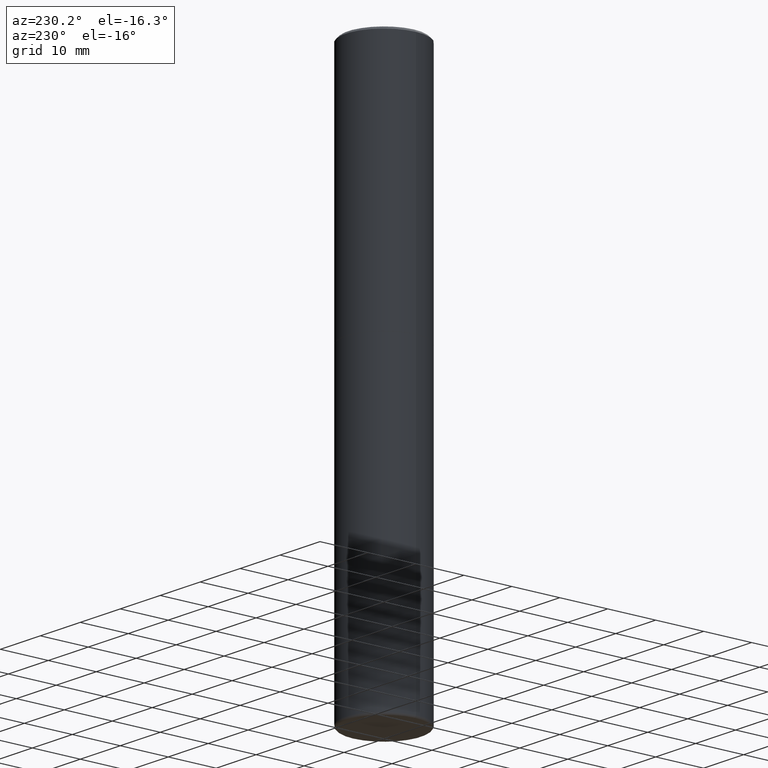
[diagram: clean part render]
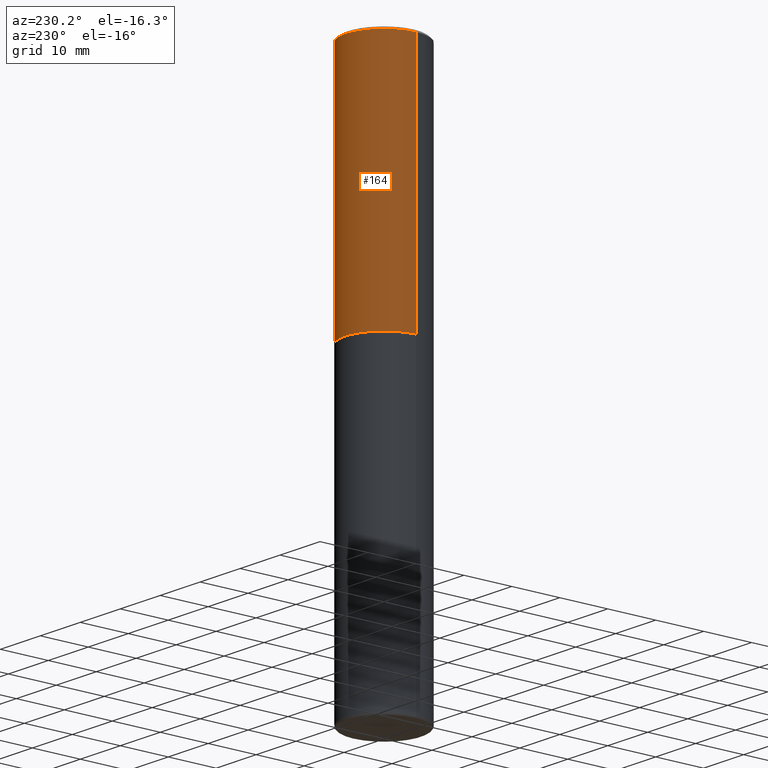
[diagram: same view with one face highlighted and labeled with its STEP entity id]
A machine part, auxiliary view. The second image highlights one B-rep face of the part: STEP entity #164.
In plain terms, the highlighted cylindrical surface (partial cylindrical patch) has radius 7.9997 mm, axis along (-0, 0, 1).
Its self-contained STEP definition (entity closure, byte-faithful):
#28 = ORIENTED_EDGE ( 'NONE', *, *, #116, .F. ) ;
#48 = AXIS2_PLACEMENT_3D ( 'NONE', #229, #399, #144 ) ;
#49 = DIRECTION ( 'NONE',  ( 1.000000000000000000, -6.982962677686265922E-15, 4.876176775795935232E-29 ) ) ;
#56 = VERTEX_POINT ( 'NONE', #163 ) ;
#74 = AXIS2_PLACEMENT_3D ( 'NONE', #278, #244, #49 ) ;
#80 = DIRECTION ( 'NONE',  ( -2.445468806185136877E-29, 3.491481338843145188E-15, 1.000000000000000000 ) ) ;
#95 = VERTEX_POINT ( 'NONE', #260 ) ;
#96 = EDGE_CURVE ( 'NONE', #186, #56, #310, .T. ) ;
#116 = EDGE_CURVE ( 'NONE', #95, #186, #270, .T. ) ;
#121 = DIRECTION ( 'NONE',  ( 1.000000000000000000, -6.982962677686267499E-15, 0.000000000000000000 ) ) ;
#144 = DIRECTION ( 'NONE',  ( 1.000000000000000000, -6.982962677686266711E-15, 0.000000000000000000 ) ) ;
#147 = VECTOR ( 'NONE', #417, 39.37007874015748143 ) ;
#155 = EDGE_LOOP ( 'NONE', ( #418, #193, #288, #28 ) ) ;
#159 = CARTESIAN_POINT ( 'NONE',  ( 4.907811347132950267E-29, -7.007053898924307914E-15, -2.006899999999999906 ) ) ;
#163 = CARTESIAN_POINT ( 'NONE',  ( -0.3149499999999999522, 2.129454468560426178E-15, -0.02000000000000006981 ) ) ;
#164 = ADVANCED_FACE ( 'NONE', ( #376 ), #345, .T. ) ;
#169 = VECTOR ( 'NONE', #80, 39.37007874015748143 ) ;
#182 = DIRECTION ( 'NONE',  ( -2.445468806185136597E-29, 3.491481338843145583E-15, 1.000000000000000000 ) ) ;
#186 = VERTEX_POINT ( 'NONE', #284 ) ;
#193 = ORIENTED_EDGE ( 'NONE', *, *, #325, .T. ) ;
#211 = AXIS2_PLACEMENT_3D ( 'NONE', #159, #182, #121 ) ;
#222 = CARTESIAN_POINT ( 'NONE',  ( -0.3149500000000002853, -1.300587416574145677E-15, -2.006899999999999906 ) ) ;
#229 = CARTESIAN_POINT ( 'NONE',  ( 4.890937612370289799E-31, -6.982962677686315028E-17, -0.02000000000000006981 ) ) ;
#230 = CARTESIAN_POINT ( 'NONE',  ( -0.3149500000000001743, 2.237854346276436774E-15, -1.549218606675783237E-29 ) ) ;
#232 = EDGE_CURVE ( 'NONE', #95, #295, #241, .T. ) ;
#241 = CIRCLE ( 'NONE', #211, 0.3149500000000002853 ) ;
#244 = DIRECTION ( 'NONE',  ( -2.445468806185136597E-29, 3.491481338843145583E-15, 1.000000000000000000 ) ) ;
#246 = LINE ( 'NONE', #230, #147 ) ;
#260 = CARTESIAN_POINT ( 'NONE',  ( 0.3149500000000002853, -9.206337994261599363E-15, -2.006899999999999906 ) ) ;
#270 = LINE ( 'NONE', #408, #169 ) ;
#278 = CARTESIAN_POINT ( 'NONE',  ( 0.000000000000000000, 0.000000000000000000, 0.000000000000000000 ) ) ;
#284 = CARTESIAN_POINT ( 'NONE',  ( 0.3149499999999999522, -2.230543471175006661E-15, -0.02000000000000006981 ) ) ;
#288 = ORIENTED_EDGE ( 'NONE', *, *, #96, .F. ) ;
#295 = VERTEX_POINT ( 'NONE', #222 ) ;
#310 = CIRCLE ( 'NONE', #48, 0.3149499999999999522 ) ;
#325 = EDGE_CURVE ( 'NONE', #295, #56, #246, .T. ) ;
#345 = CYLINDRICAL_SURFACE ( 'NONE', #74, 0.3149500000000001743 ) ;
#376 = FACE_OUTER_BOUND ( 'NONE', #155, .T. ) ;
#399 = DIRECTION ( 'NONE',  ( -2.445468806185136597E-29, 3.491481338843145583E-15, 1.000000000000000000 ) ) ;
#408 = CARTESIAN_POINT ( 'NONE',  ( 0.3149500000000001743, -2.199284095337290660E-15, 1.535751875536930690E-29 ) ) ;
#417 = DIRECTION ( 'NONE',  ( -2.445468806185136877E-29, 3.491481338843145188E-15, 1.000000000000000000 ) ) ;
#418 = ORIENTED_EDGE ( 'NONE', *, *, #232, .T. ) ;